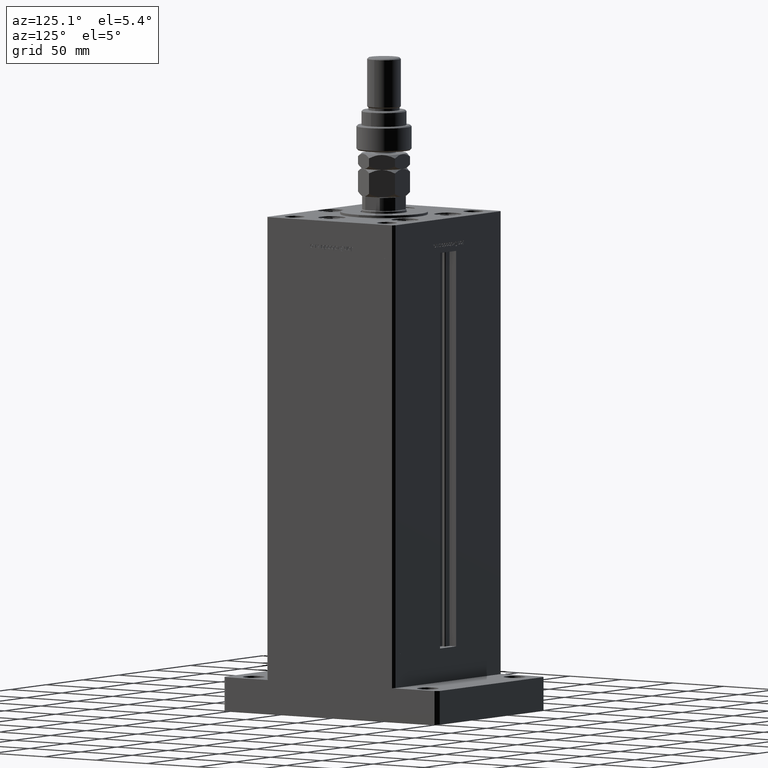
[diagram: clean part render]
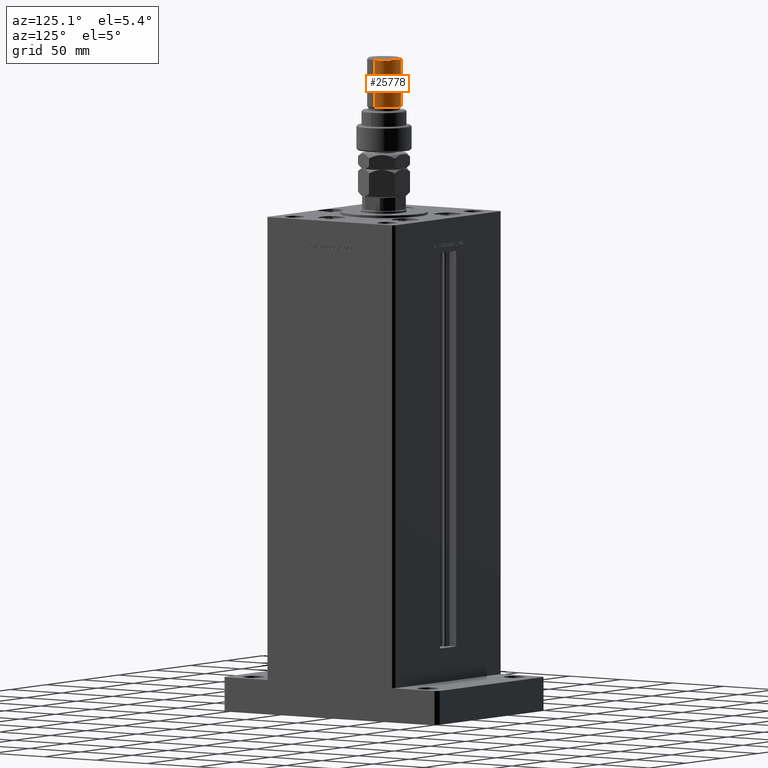
[diagram: same view with one face highlighted and labeled with its STEP entity id]
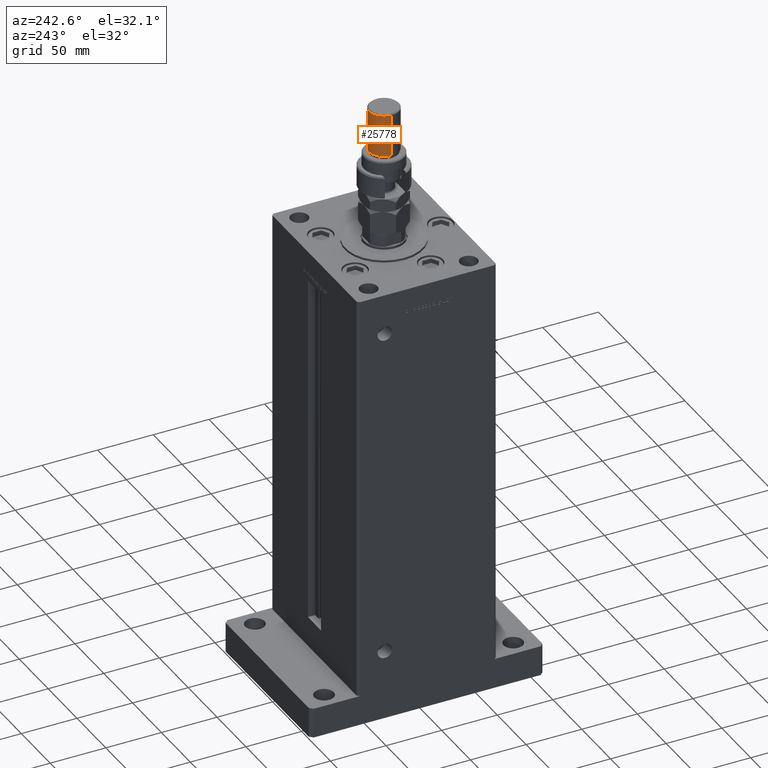
[diagram: same view with one face highlighted and labeled with its STEP entity id]
A machine part, auxiliary view. The second image highlights one B-rep face of the part: STEP entity #25778.
A second angle (auxiliary view) of the same face is appended — the face is thin or edge-on in the first view.
In plain terms, the highlighted cylindrical surface (edge-blend (fillet) strip) has radius 13.5 mm, axis along (-0, -0, -1).
Its self-contained STEP definition (entity closure, byte-faithful):
#4345 = VERTEX_POINT ( 'NONE', #43598 ) ;
#6379 = EDGE_CURVE ( 'NONE', #17633, #33597, #55113, .T. ) ;
#8207 = DIRECTION ( 'NONE',  ( -1.000000000000000000, 0.000000000000000000, 0.000000000000000000 ) ) ;
#12172 = CARTESIAN_POINT ( 'NONE',  ( -13.50000000000000000, 0.000000000000000000, 73.00000000000001421 ) ) ;
#13242 = EDGE_CURVE ( 'NONE', #33597, #4345, #26536, .T. ) ;
#14558 = VECTOR ( 'NONE', #33687, 1000.000000000000000 ) ;
#16487 = LINE ( 'NONE', #50269, #14558 ) ;
#17633 = VERTEX_POINT ( 'NONE', #49195 ) ;
#19078 = CARTESIAN_POINT ( 'NONE',  ( 0.000000000000000000, 0.000000000000000000, 73.00000000000001421 ) ) ;
#20814 = CYLINDRICAL_SURFACE ( 'NONE', #56108, 13.50000000000000000 ) ;
#21050 = CIRCLE ( 'NONE', #26527, 13.50000000000000000 ) ;
#25544 = ORIENTED_EDGE ( 'NONE', *, *, #53944, .T. ) ;
#25778 = ADVANCED_FACE ( 'NONE', ( #47402 ), #20814, .T. ) ;
#26527 = AXIS2_PLACEMENT_3D ( 'NONE', #19078, #39696, #48847 ) ;
#26536 = CIRCLE ( 'NONE', #37483, 13.50000000000000000 ) ;
#29412 = DIRECTION ( 'NONE',  ( -0.000000000000000000, -0.000000000000000000, -1.000000000000000000 ) ) ;
#29600 = ORIENTED_EDGE ( 'NONE', *, *, #13242, .T. ) ;
#30737 = ORIENTED_EDGE ( 'NONE', *, *, #6379, .T. ) ;
#32300 = EDGE_LOOP ( 'NONE', ( #25544, #30737, #29600, #42979 ) ) ;
#33597 = VERTEX_POINT ( 'NONE', #53895 ) ;
#33687 = DIRECTION ( 'NONE',  ( -0.000000000000000000, -0.000000000000000000, -1.000000000000000000 ) ) ;
#37483 = AXIS2_PLACEMENT_3D ( 'NONE', #49320, #40739, #54188 ) ;
#39696 = DIRECTION ( 'NONE',  ( 0.000000000000000000, 0.000000000000000000, -1.000000000000000000 ) ) ;
#40739 = DIRECTION ( 'NONE',  ( -0.000000000000000000, -0.000000000000000000, 1.000000000000000000 ) ) ;
#42509 = CARTESIAN_POINT ( 'NONE',  ( 13.50000000000000000, 1.653273178848926867E-15, 74.00000000000001421 ) ) ;
#42979 = ORIENTED_EDGE ( 'NONE', *, *, #47564, .F. ) ;
#43598 = CARTESIAN_POINT ( 'NONE',  ( -13.50000000000000000, 0.000000000000000000, 34.99999999999999289 ) ) ;
#45955 = DIRECTION ( 'NONE',  ( -0.000000000000000000, -0.000000000000000000, -1.000000000000000000 ) ) ;
#47402 = FACE_OUTER_BOUND ( 'NONE', #32300, .T. ) ;
#47564 = EDGE_CURVE ( 'NONE', #49954, #4345, #16487, .T. ) ;
#48847 = DIRECTION ( 'NONE',  ( 1.000000000000000000, 0.000000000000000000, 0.000000000000000000 ) ) ;
#49195 = CARTESIAN_POINT ( 'NONE',  ( 13.50000000000000000, 1.653273178848926867E-15, 73.00000000000001421 ) ) ;
#49320 = CARTESIAN_POINT ( 'NONE',  ( 0.000000000000000000, 0.000000000000000000, 34.99999999999999289 ) ) ;
#49954 = VERTEX_POINT ( 'NONE', #12172 ) ;
#50269 = CARTESIAN_POINT ( 'NONE',  ( -13.50000000000000000, 0.000000000000000000, 74.00000000000001421 ) ) ;
#51592 = VECTOR ( 'NONE', #45955, 1000.000000000000000 ) ;
#53895 = CARTESIAN_POINT ( 'NONE',  ( 13.50000000000000000, 1.653273178848926867E-15, 34.99999999999999289 ) ) ;
#53944 = EDGE_CURVE ( 'NONE', #49954, #17633, #21050, .T. ) ;
#54188 = DIRECTION ( 'NONE',  ( 1.000000000000000000, 0.000000000000000000, 0.000000000000000000 ) ) ;
#54873 = CARTESIAN_POINT ( 'NONE',  ( 0.000000000000000000, 0.000000000000000000, 74.00000000000001421 ) ) ;
#55113 = LINE ( 'NONE', #42509, #51592 ) ;
#56108 = AXIS2_PLACEMENT_3D ( 'NONE', #54873, #29412, #8207 ) ;